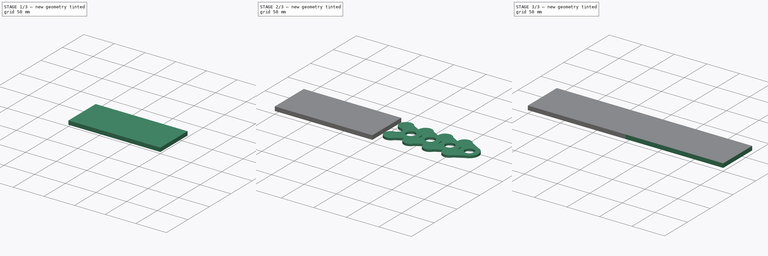
[diagram: build sequence overview — one tinted view per stage of 3, left to right]
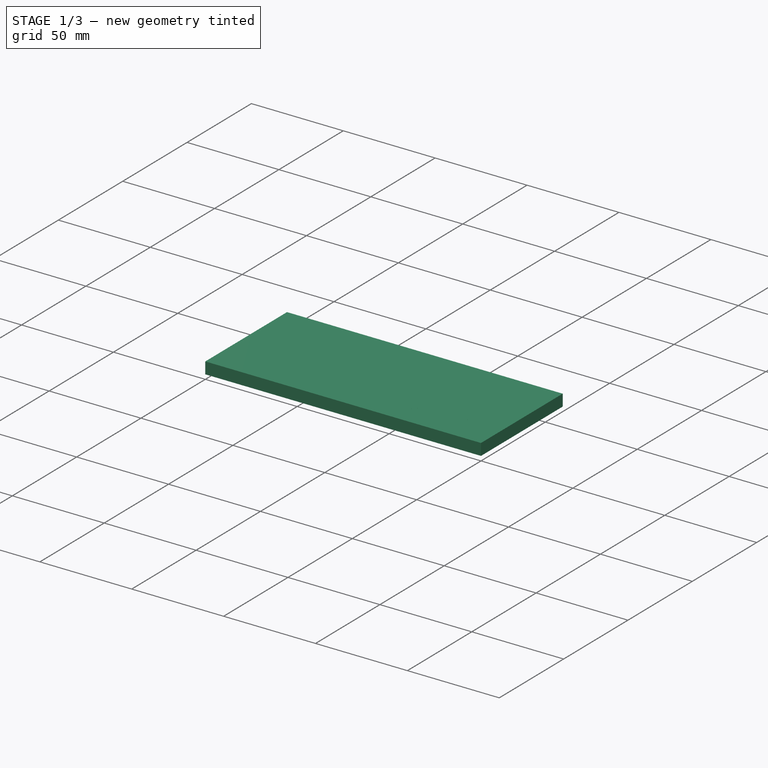
[diagram: stage 1 of 3 — iso view after this stage's code; geometry added in this stage tinted green]
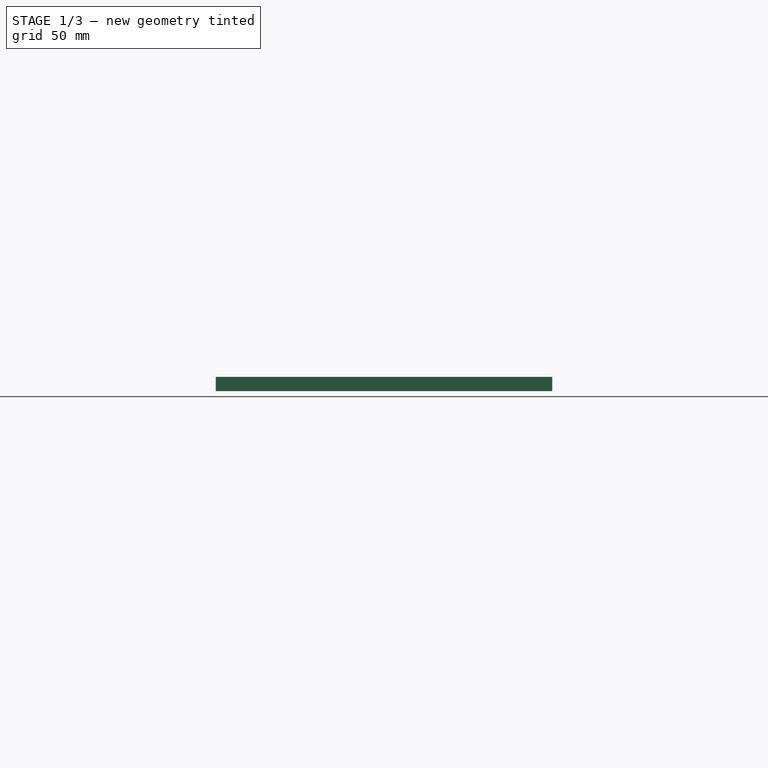
[diagram: stage 1 of 3 — front view after this stage's code; geometry added in this stage tinted green]
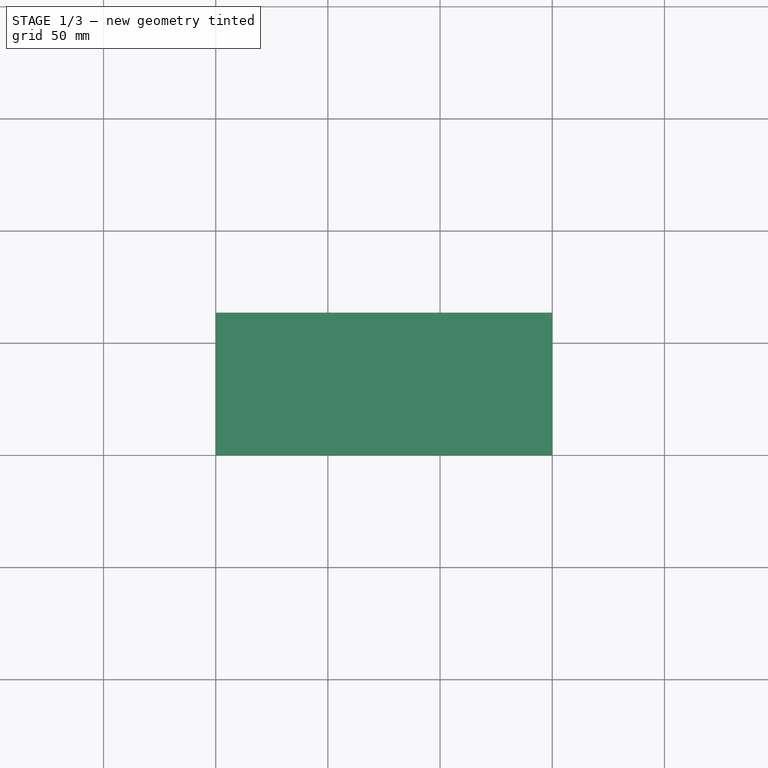
[diagram: stage 1 of 3 — top view after this stage's code; geometry added in this stage tinted green]
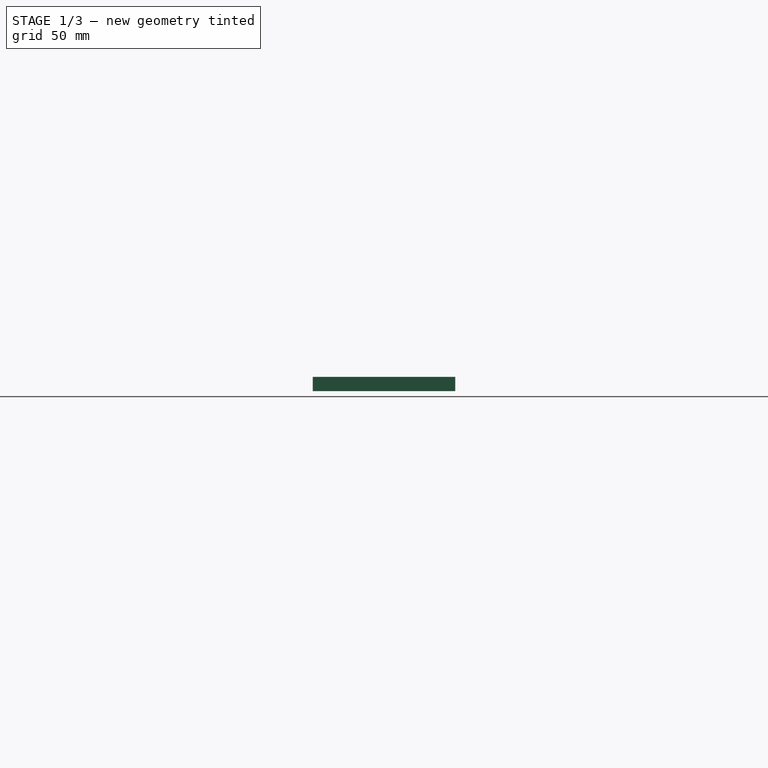
[diagram: stage 1 of 3 — right view after this stage's code; geometry added in this stage tinted green]
FCSTD DOCUMENT  (FreeCAD 0.17R13327 (Git))
Label: holdingTagCatastrophy
License: All rights reserved
LicenseURL: http://en.wikipedia.org/wiki/All_rights_reserved
objects: Part::Feature×8, Sketcher::SketchObject×4, Part::FeaturePython×3, Part::Extrusion×3
note: 18 computed .brp shape members not serialized (recipe doc carries the construction recipe); baked Part::Feature solids carry a one-line shape summary decoded from their .brp

FEATURE [Sketcher::SketchObject] Sketch002
  Placement = pos=(0,0,3.1) rot=(0,0,1;0rad)
  sketch-geometry (2):
    g0: LineSegment StartX=37 StartY=18.75 StartZ=0 EndX=37 EndY=26.75 EndZ=0
    g1: ArcOfCircle CenterX=37 CenterY=31.75 CenterZ=0 NormalX=0 NormalY=0 NormalZ=1 AngleXU=0 Radius=5 StartAngle=4.71239 EndAngle=10.9956
  constraints (7):
    c: Vertical(g0)
    c: Perpendicular(g0,g1) = 4.71239
    c: Radius(g1) = 5
    c: PointOnObject(g1,g0)
    c: DistanceY(g1) = 31.75
    c: DistanceX(g1) = 37
    c: DistanceY(g0,g0) = 8
FEATURE [Part::Feature] Edge
  Placement = pos=(0,0,3.1) rot=(0,0,1;0rad)
  shape: bbox 2e-07 x 8 x 2e-07 mm, 0 faces, 0 solids (baked)
FEATURE [Part::Feature] Edge001
  Placement = pos=(0,0,3.1) rot=(0,0,1;0rad)
  shape: bbox 10 x 10 x 2e-07 mm, 0 faces, 0 solids (baked)
FEATURE [Part::Feature] Shape003
  shape: bbox 10 x 18 x 2e-07 mm, 0 faces, 0 solids (baked)
FEATURE [Part::Feature] Shape004
  shape: bbox 12 x 12 x 2e-07 mm, 1 faces, 0 solids (baked)
FEATURE [Sketcher::SketchObject] Sketch003
  sketch-geometry (5):
    g0: LineSegment StartX=0 StartY=63.5 StartZ=0 EndX=150 EndY=63.5 EndZ=0
    g1: LineSegment StartX=150 StartY=63.5 StartZ=0 EndX=150 EndY=0 EndZ=0
    g2: LineSegment StartX=150 StartY=0 StartZ=0 EndX=0 EndY=0 EndZ=0
    g3: LineSegment StartX=0 StartY=0 StartZ=0 EndX=0 EndY=63.5 EndZ=0
    g4: Circle [constr] CenterX=24.5878 CenterY=-6.51467 CenterZ=0 NormalX=0 NormalY=0 NormalZ=1 AngleXU=0 Radius=3.175
  constraints (12):
    c: Coincident(g0,g1)
    c: Coincident(g1,g2)
    c: Coincident(g2,g3)
    c: Coincident(g3,g0)
    c: Horizontal(g0)
    c: Horizontal(g2)
    c: Vertical(g1)
    c: Vertical(g3)
    c: DistanceX(g0,g0) = 150
    c: DistanceY(g3,g3) = 63.5
    c: Radius(g4) = 3.175
    c: Coincident(g2,g-1)
FEATURE [Part::Extrusion] Extrude002
  Base = -> Sketch003
  Dir = (0,0,1)
  DirMode = 2
  FaceMakerClass = Part::FaceMakerBullseye
  LengthFwd = 6.35
  LengthRev = 0
  Placement = pos=(0,0,6.35) rot=(0,1,0;3.14159rad)
  Solid = true
  Symmetric = false
FEATURE [Part::Feature] Shape005
  Placement = pos=(15,-148.25,192.625) rot=(0,1,0;1.5708rad)
  shape: bbox 31 x 41 x 6.125 mm, 25 faces (baked)
FEATURE [Part::FeaturePython] Array006  # Draft array (typed FeaturePython)
  Angle = 360
  ArrayType = 0
  Axis = (0,0,1)
  Base = -> Shape005
  Center = (0,0,0)
  Fuse = false
  IntervalAxis = (0,0,0)
  IntervalX = (30,0,0)
  IntervalY = (0,1,0)
  IntervalZ = (0,0,0)
  NumberPolar = 1
  NumberX = 4
  NumberY = 1
  NumberZ = 1
  Placement = pos=(0,0,6.35) rot=(0,1,0;3.14159rad)
FEATURE [Part::Feature] Shape065
  Placement = pos=(0,0,9.35) rot=(0,1,0;3.14159rad)
  shape: bbox 43.7 x 53.7 x 2e-07 mm, 1 faces, 0 solids (baked)
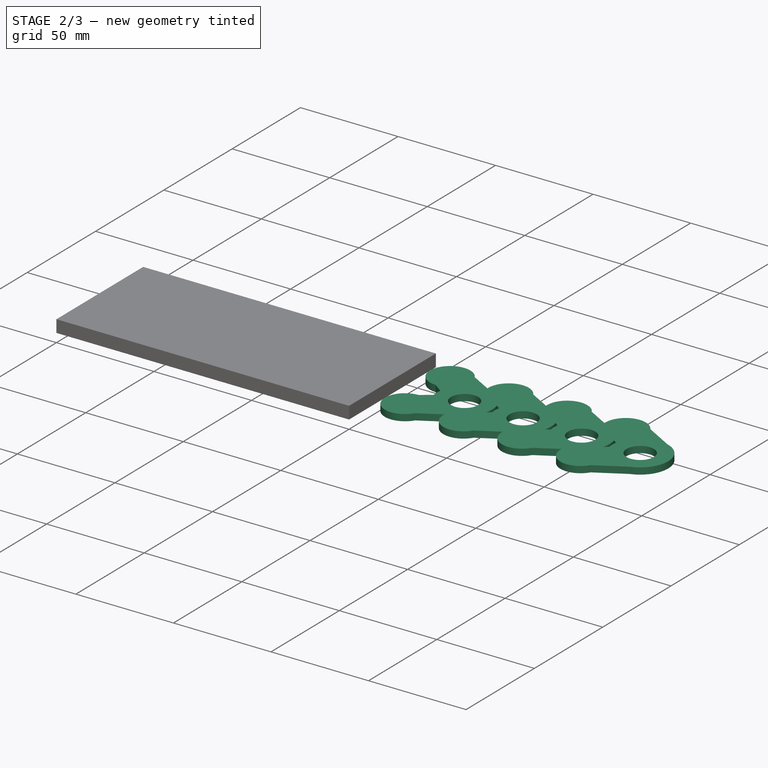
[diagram: stage 2 of 3 — iso view after this stage's code; geometry added in this stage tinted green]
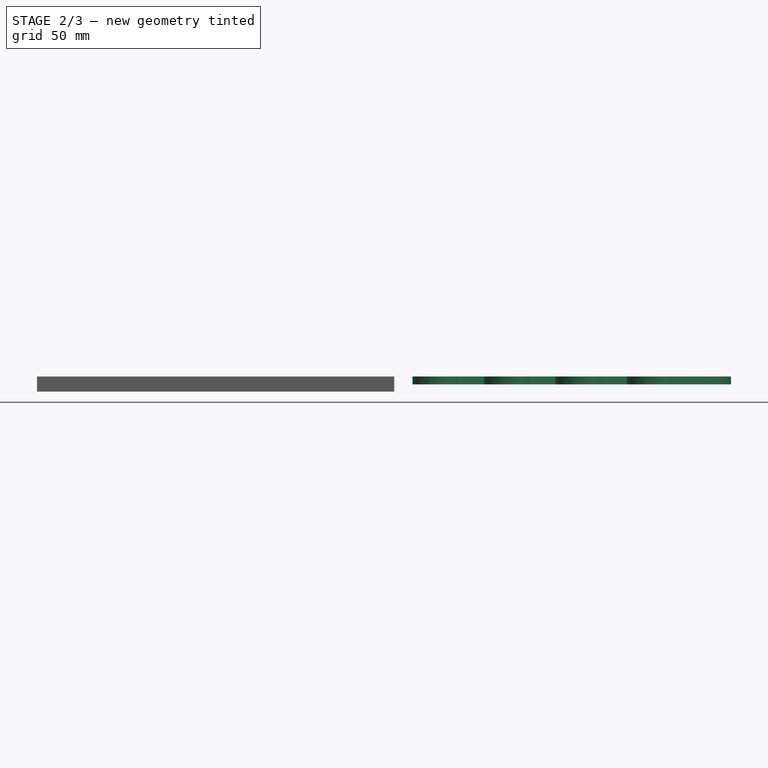
[diagram: stage 2 of 3 — front view after this stage's code; geometry added in this stage tinted green]
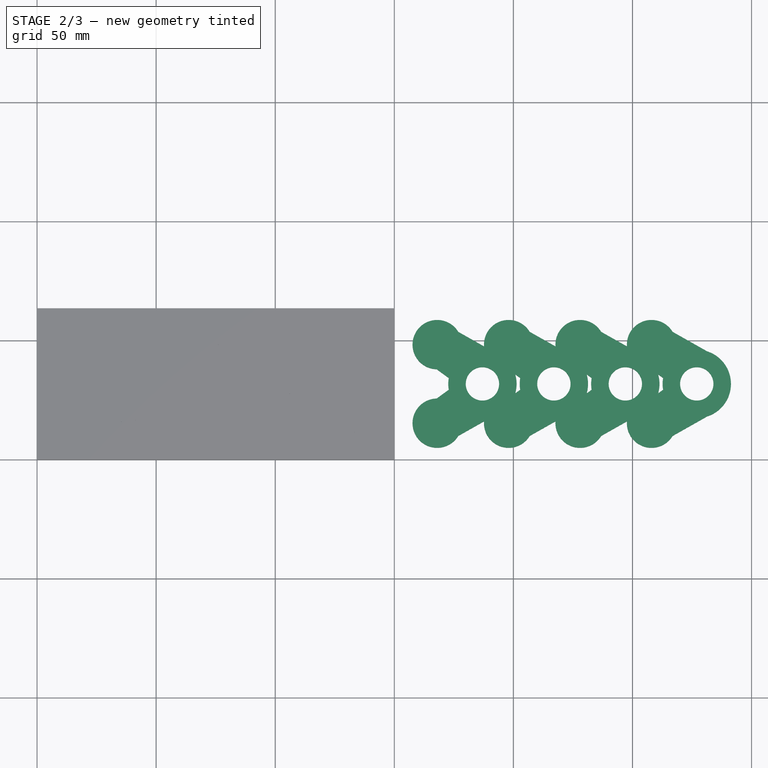
[diagram: stage 2 of 3 — top view after this stage's code; geometry added in this stage tinted green]
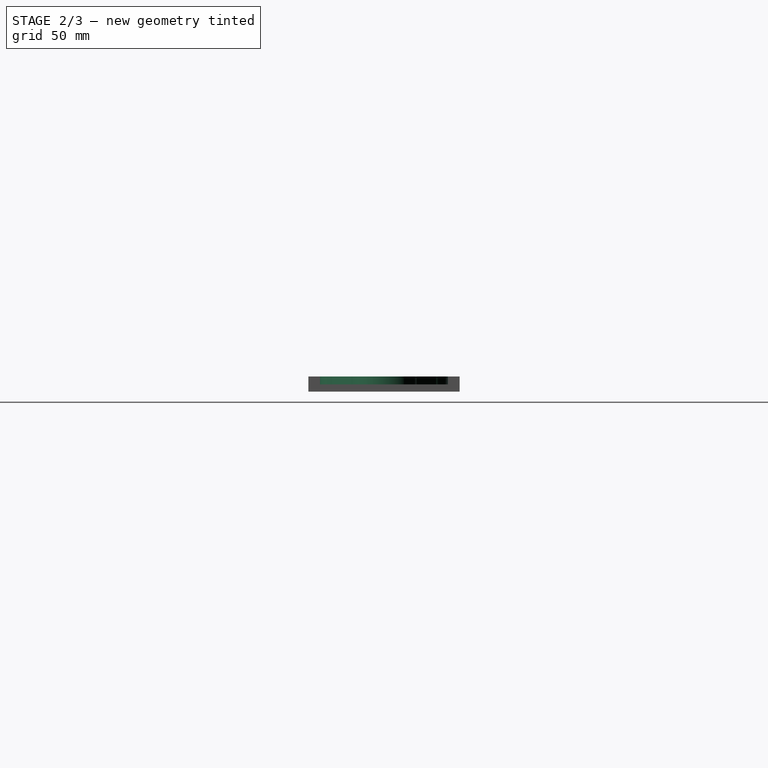
[diagram: stage 2 of 3 — right view after this stage's code; geometry added in this stage tinted green]
FEATURE [Sketcher::SketchObject] Sketch001
  Placement = pos=(0,0,3) rot=(0,0,1;0rad)
  sketch-geometry (11):
    g0: LineSegment [constr] StartX=22.5 StartY=31.75 StartZ=0 EndX=37 EndY=31.75 EndZ=0
    g1: LineSegment StartX=22.5 StartY=37.5 StartZ=0 EndX=22.5 EndY=26 EndZ=0
    g2: LineSegment StartX=22.5 StartY=26 StartZ=0 EndX=14.4233 EndY=20.6775 EndZ=0
    g3: ArcOfCircle CenterX=18 CenterY=15.25 CenterZ=0 NormalX=0 NormalY=0 NormalZ=1 AngleXU=0 Radius=6.5 StartAngle=2.15347 EndAngle=5.18926
    g4: LineSegment StartX=20.9835 StartY=9.47518 StartZ=0 EndX=37 EndY=17.75 EndZ=0
    g5: ArcOfCircle CenterX=37 CenterY=31.75 CenterZ=0 NormalX=0 NormalY=0 NormalZ=1 AngleXU=0 Radius=14 StartAngle=4.71239 EndAngle=7.85398
    g6: LineSegment StartX=37 StartY=45.75 StartZ=0 EndX=20.9835 EndY=54.0248 EndZ=0
    g7: ArcOfCircle CenterX=18 CenterY=48.25 CenterZ=0 NormalX=0 NormalY=0 NormalZ=1 AngleXU=0 Radius=6.5 StartAngle=1.09392 EndAngle=4.12971
    g8: LineSegment StartX=14.4233 StartY=42.8225 StartZ=0 EndX=22.5 EndY=37.5 EndZ=0
    g9: LineSegment [constr] StartX=37 StartY=45.75 StartZ=0 EndX=37 EndY=17.75 EndZ=0
    g10: Circle CenterX=37 CenterY=31.75 CenterZ=0 NormalX=0 NormalY=0 NormalZ=1 AngleXU=0 Radius=7
  constraints (30):
    c: Horizontal(g0)
    c: DistanceY(g0) = 31.75
    c: Coincident(g1,g2)
    c: Tangent(g2,g3) = -1.5708
    c: Tangent(g3,g4) = -1.5708
    c: Coincident(g5,g6)
    c: Coincident(g7,g8)
    c: Coincident(g8,g1)
    c: Coincident(g5,g0)
    c: Coincident(g4,g5)
    c: Coincident(g9,g5)
    c: Coincident(g9,g4)
    c: Vertical(g9)
    c: PointOnObject(g0,g9)
    c: DistanceX(g5) = 37
    c: Coincident(g7,g6)
    c: Tangent(g8,g7)
    c: Tangent(g6,g7)
    c: DistanceY(g7) = 48.25
    c: DistanceX(g7) = 18
    c: Radius(g7) = 6.5
    c: Equal(g3,g7)
    c: Symmetric(g3,g7,g0)
    c: Symmetric(g1,g1,g0)
    c: Radius(g5) = 14
    c: DistanceX(g1) = 22.5
    c: DistanceY(g1,g1) = 11.5
    c: PointOnObject(g0,g1)
    c: Coincident(g10,g0)
    c: Radius(g10) = 7
FEATURE [Part::Feature] Shape002
  shape: bbox 43.7 x 53.7 x 2e-07 mm, 1 faces, 0 solids (baked)
FEATURE [Part::Extrusion] Extrude001
  Base = -> Shape002
  Dir = (0,0,1)
  DirMode = 2
  FaceMakerClass = Part::FaceMakerBullseye
  LengthFwd = 3.35
  LengthRev = 0
  Solid = false
  Symmetric = false
FEATURE [Part::FeaturePython] Array001  # Draft array (typed FeaturePython)
  Angle = 360
  ArrayType = 0
  Axis = (0,0,1)
  Base = -> Extrude001
  Center = (0,0,0)
  Fuse = false
  IntervalAxis = (0,0,0)
  IntervalX = (30,0,0)
  IntervalY = (0,1,0)
  IntervalZ = (0,0,0)
  NumberPolar = 1
  NumberX = 4
  NumberY = 1
  NumberZ = 1
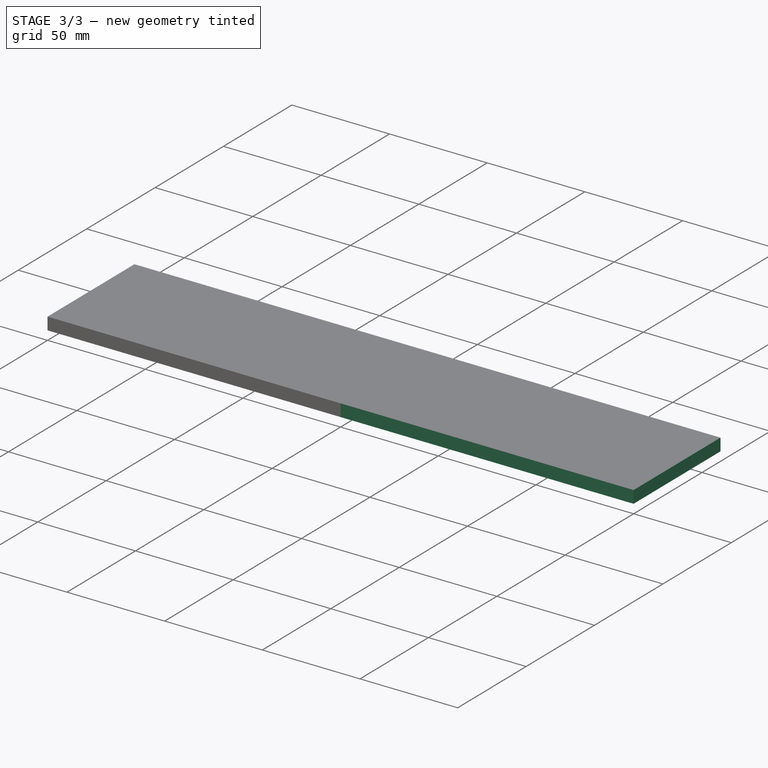
[diagram: stage 3 of 3 — iso view after this stage's code; geometry added in this stage tinted green]
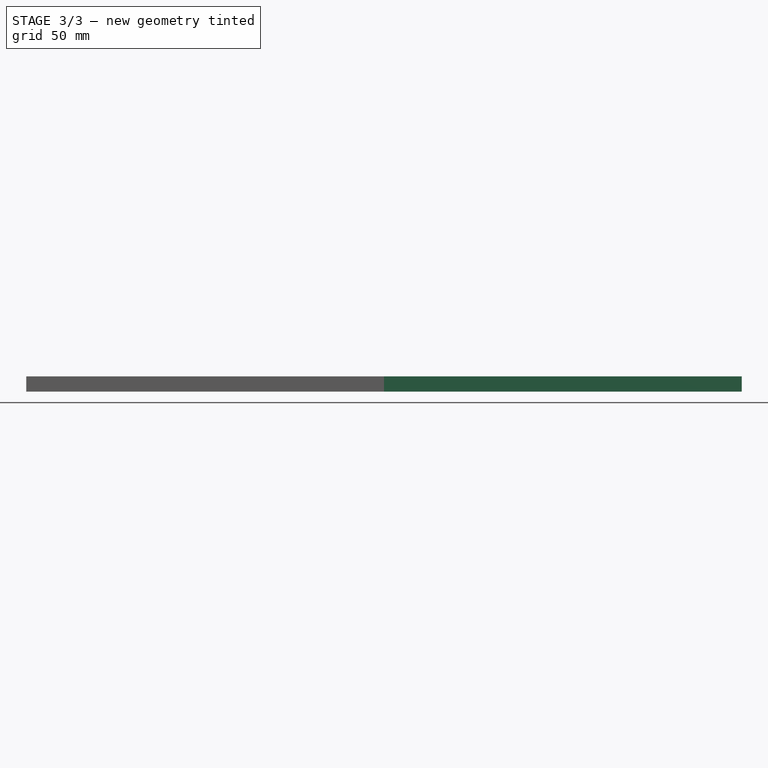
[diagram: stage 3 of 3 — front view after this stage's code; geometry added in this stage tinted green]
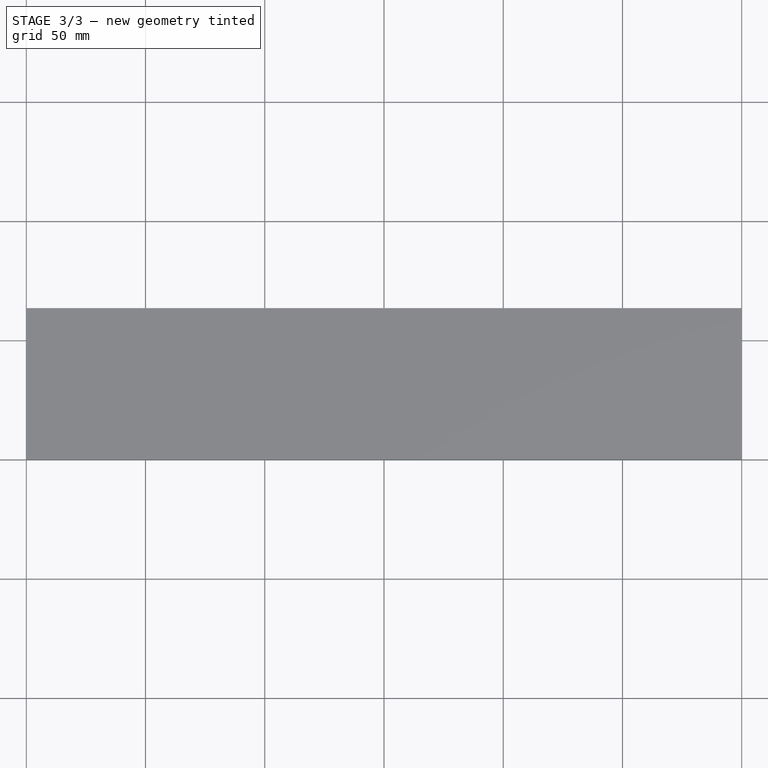
[diagram: stage 3 of 3 — top view after this stage's code; geometry added in this stage tinted green]
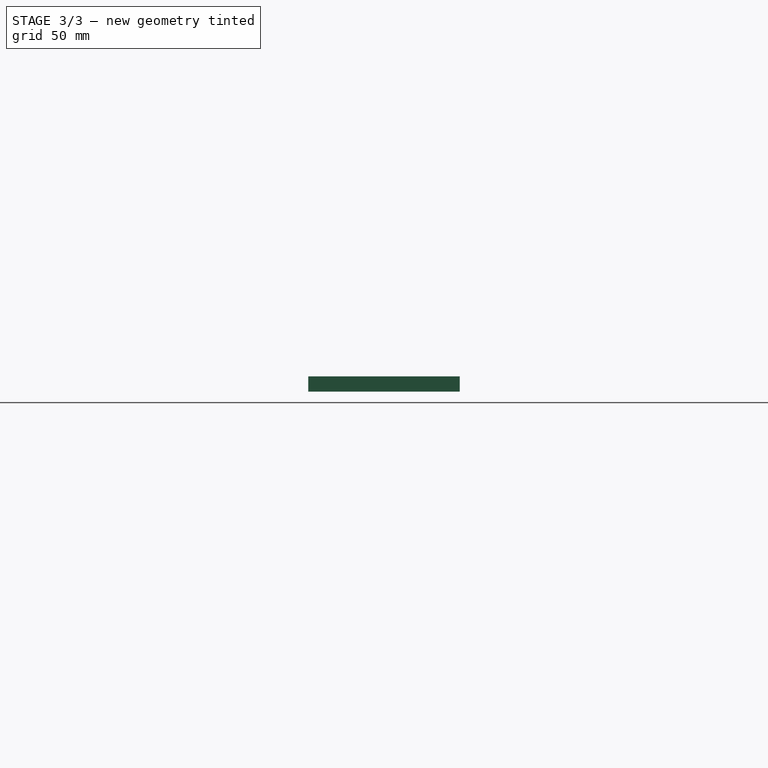
[diagram: stage 3 of 3 — right view after this stage's code; geometry added in this stage tinted green]
FEATURE [Part::Feature] Shape
  Placement = pos=(15,-148.25,192.625) rot=(0,1,0;1.5708rad)
  shape: bbox 31 x 41 x 6.125 mm, 25 faces (baked)
FEATURE [Sketcher::SketchObject] Sketch
  sketch-geometry (5):
    g0: LineSegment StartX=0 StartY=63.5 StartZ=0 EndX=150 EndY=63.5 EndZ=0
    g1: LineSegment StartX=150 StartY=63.5 StartZ=0 EndX=150 EndY=0 EndZ=0
    g2: LineSegment StartX=150 StartY=0 StartZ=0 EndX=0 EndY=0 EndZ=0
    g3: LineSegment StartX=0 StartY=0 StartZ=0 EndX=0 EndY=63.5 EndZ=0
    g4: Circle [constr] CenterX=24.5878 CenterY=-6.51467 CenterZ=0 NormalX=0 NormalY=0 NormalZ=1 AngleXU=0 Radius=3.175
  constraints (12):
    c: Coincident(g0,g1)
    c: Coincident(g1,g2)
    c: Coincident(g2,g3)
    c: Coincident(g3,g0)
    c: Horizontal(g0)
    c: Horizontal(g2)
    c: Vertical(g1)
    c: Vertical(g3)
    c: DistanceX(g0,g0) = 150
    c: DistanceY(g3,g3) = 63.5
    c: Radius(g4) = 3.175
    c: Coincident(g2,g-1)
FEATURE [Part::FeaturePython] Array  # Draft array (typed FeaturePython)
  Angle = 360
  ArrayType = 0
  Axis = (0,0,1)
  Base = -> Shape
  Center = (0,0,0)
  Fuse = false
  IntervalAxis = (0,0,0)
  IntervalX = (30,0,0)
  IntervalY = (0,1,0)
  IntervalZ = (0,0,0)
  NumberPolar = 1
  NumberX = 4
  NumberY = 1
  NumberZ = 1
FEATURE [Part::Extrusion] Extrude
  Base = -> Sketch
  Dir = (0,0,1)
  DirMode = 2
  FaceMakerClass = Part::FaceMakerBullseye
  LengthFwd = 6.35
  LengthRev = 0
  Solid = true
  Symmetric = false
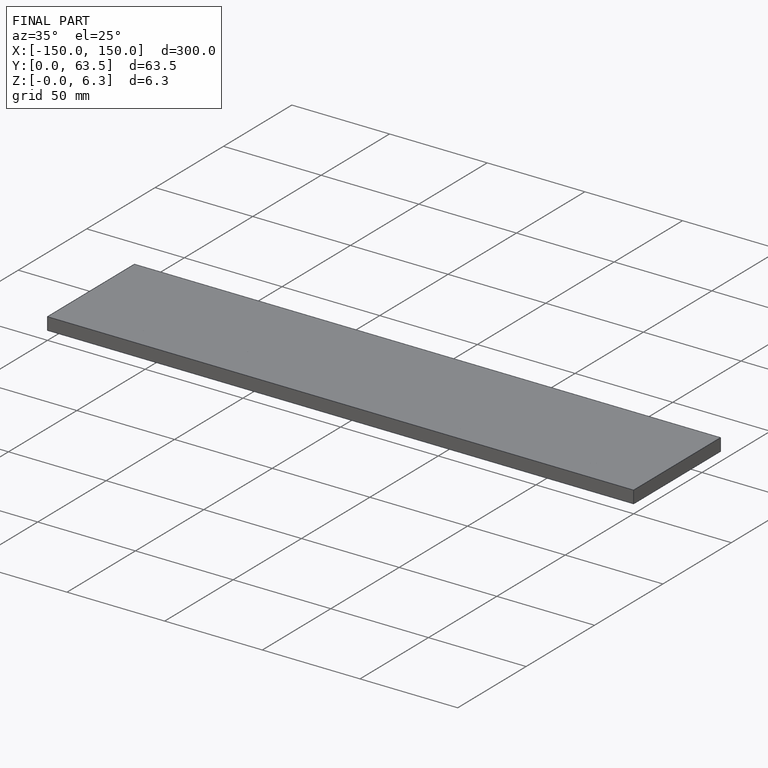
[diagram: finished part — iso view with bounding-box wireframe]
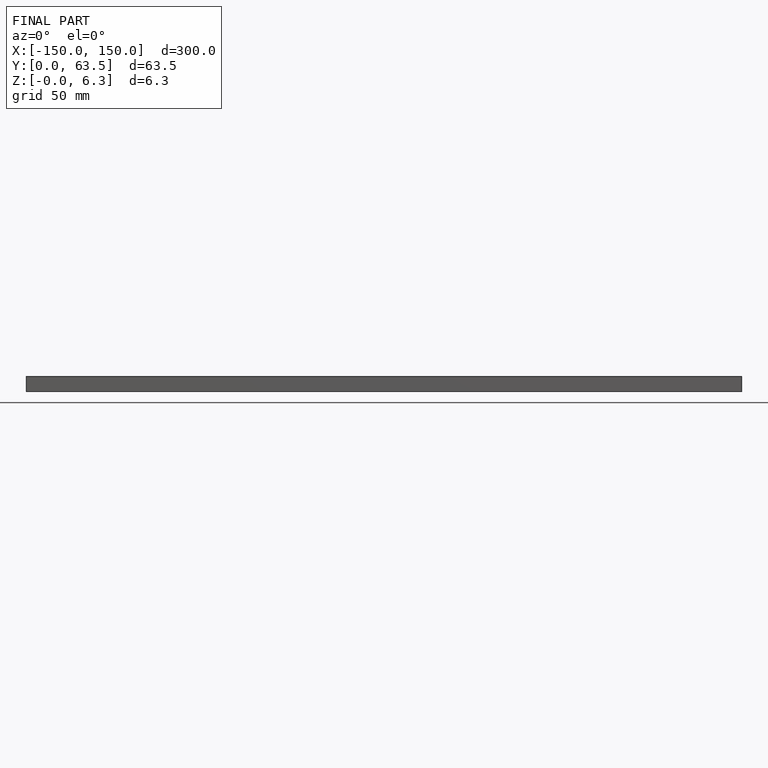
[diagram: finished part — front view with bounding-box wireframe]
